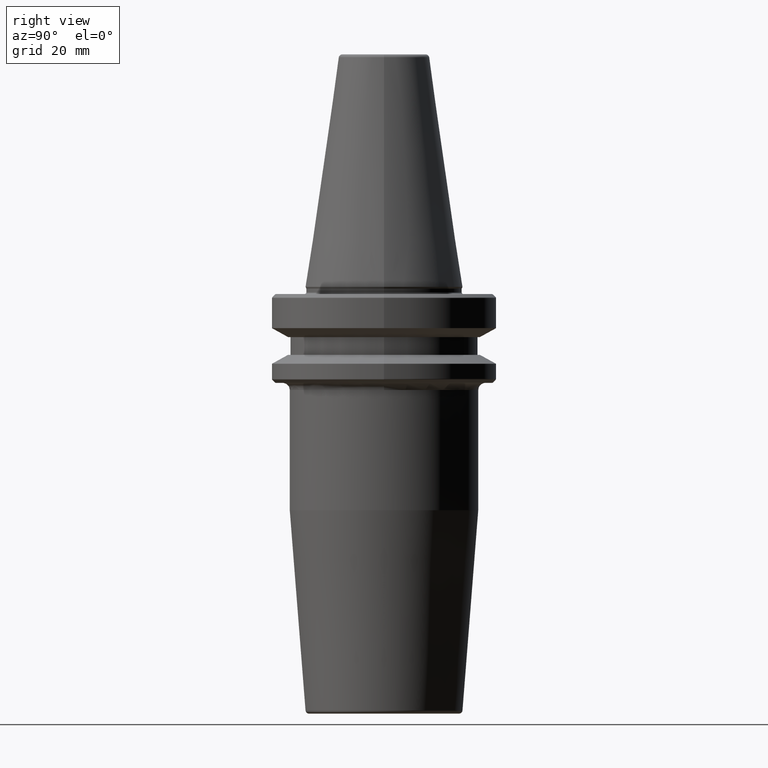
[diagram: clean part render]
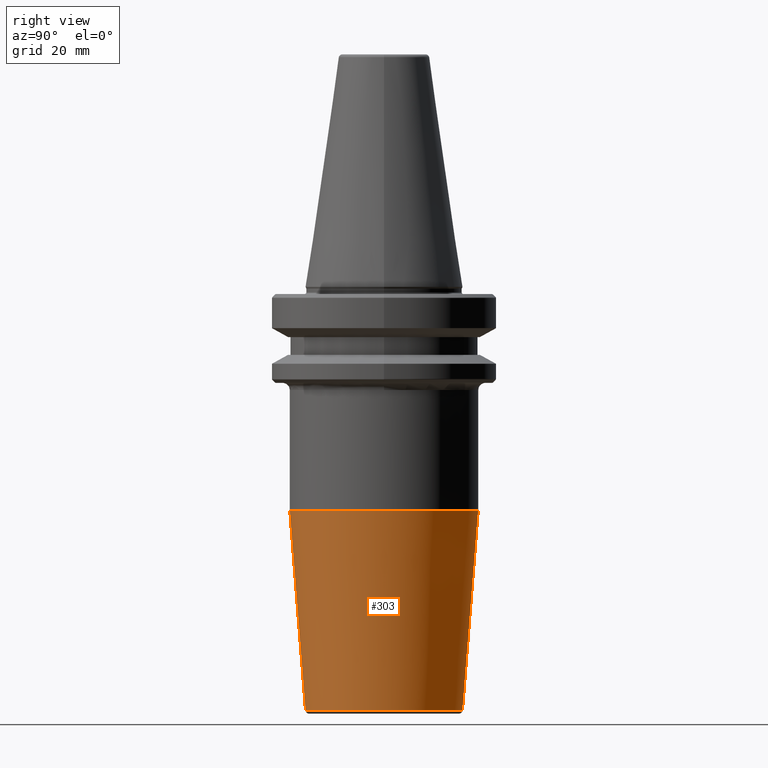
[diagram: same view with one face highlighted and labeled with its STEP entity id]
A machine part, right view. The second image highlights one B-rep face of the part: STEP entity #303.
In plain terms, the highlighted conical surface has half-angle 4.5 deg.
Its self-contained STEP definition (entity closure, byte-faithful):
#17 = CARTESIAN_POINT ( 'NONE',  ( 2.703104934624107000E-015, 22.07252684207491100, -119.0784590957278200 ) ) ;
#41 = CIRCLE ( 'NONE', #201, 22.07252684207490700 ) ;
#47 = CARTESIAN_POINT ( 'NONE',  ( 2.703104934624107000E-015, -22.07252684207490400, -119.0784590957278200 ) ) ;
#54 = DIRECTION ( 'NONE',  ( 0.0000000000000000000, 1.000000000000000000, 0.0000000000000000000 ) ) ;
#94 = DIRECTION ( 'NONE',  ( 0.0000000000000000000, -1.000000000000000000, 0.0000000000000000000 ) ) ;
#171 = DIRECTION ( 'NONE',  ( -0.0000000000000000000, 5.530662963891274600E-017, -1.000000000000000000 ) ) ;
#201 = AXIS2_PLACEMENT_3D ( 'NONE', #777, #171, #861 ) ;
#246 = LINE ( 'NONE', #936, #756 ) ;
#247 = VECTOR ( 'NONE', #512, 1000.000000000000000 ) ;
#303 = ADVANCED_FACE ( 'NONE', ( #1024 ), #1244, .T. ) ;
#408 = DIRECTION ( 'NONE',  ( 0.0000000000000000000, -5.530662963891274600E-017, 1.000000000000000000 ) ) ;
#432 = EDGE_CURVE ( 'NONE', #787, #654, #649, .T. ) ;
#433 = DIRECTION ( 'NONE',  ( 0.0000000000000000000, -0.07845909572783105200, 0.9969173337331289600 ) ) ;
#512 = DIRECTION ( 'NONE',  ( 9.608468044708400200E-018, 0.07845909572783094100, 0.9969173337331290700 ) ) ;
#519 = ORIENTED_EDGE ( 'NONE', *, *, #958, .F. ) ;
#544 = EDGE_CURVE ( 'NONE', #927, #787, #783, .T. ) ;
#558 = ORIENTED_EDGE ( 'NONE', *, *, #432, .T. ) ;
#574 = CARTESIAN_POINT ( 'NONE',  ( 0.0000000000000000000, 1.981198438849161000E-015, -62.82207868720364300 ) ) ;
#577 = EDGE_LOOP ( 'NONE', ( #519, #672, #558, #1003 ) ) ;
#649 = CIRCLE ( 'NONE', #906, 26.50000000000000000 ) ;
#654 = VERTEX_POINT ( 'NONE', #883 ) ;
#672 = ORIENTED_EDGE ( 'NONE', *, *, #544, .T. ) ;
#691 = EDGE_CURVE ( 'NONE', #844, #654, #246, .T. ) ;
#756 = VECTOR ( 'NONE', #433, 1000.000000000000100 ) ;
#777 = CARTESIAN_POINT ( 'NONE',  ( 0.0000000000000000000, 5.092549234929195400E-015, -119.0784590957278200 ) ) ;
#783 = LINE ( 'NONE', #17, #247 ) ;
#787 = VERTEX_POINT ( 'NONE', #1006 ) ;
#833 = CARTESIAN_POINT ( 'NONE',  ( 0.0000000000000000000, 5.092549234929195400E-015, -119.0784590957278200 ) ) ;
#844 = VERTEX_POINT ( 'NONE', #47 ) ;
#861 = DIRECTION ( 'NONE',  ( 0.0000000000000000000, 1.000000000000000000, 0.0000000000000000000 ) ) ;
#883 = CARTESIAN_POINT ( 'NONE',  ( 0.0000000000000000000, -26.49999999999999600, -62.82207868720364300 ) ) ;
#906 = AXIS2_PLACEMENT_3D ( 'NONE', #574, #1248, #54 ) ;
#927 = VERTEX_POINT ( 'NONE', #1148 ) ;
#930 = AXIS2_PLACEMENT_3D ( 'NONE', #833, #408, #94 ) ;
#936 = CARTESIAN_POINT ( 'NONE',  ( 0.0000000000000000000, -22.07252684207490400, -119.0784590957278200 ) ) ;
#958 = EDGE_CURVE ( 'NONE', #927, #844, #41, .T. ) ;
#1003 = ORIENTED_EDGE ( 'NONE', *, *, #691, .F. ) ;
#1006 = CARTESIAN_POINT ( 'NONE',  ( 3.245314017740485400E-015, 26.49999999999999600, -62.82207868720364300 ) ) ;
#1024 = FACE_OUTER_BOUND ( 'NONE', #577, .T. ) ;
#1148 = CARTESIAN_POINT ( 'NONE',  ( 0.0000000000000000000, 22.07252684207491100, -119.0784590957278200 ) ) ;
#1244 = CONICAL_SURFACE ( 'NONE', #930, 22.07252684207490700, 0.07853981633973083900 ) ;
#1248 = DIRECTION ( 'NONE',  ( -0.0000000000000000000, 5.530662963891274600E-017, -1.000000000000000000 ) ) ;